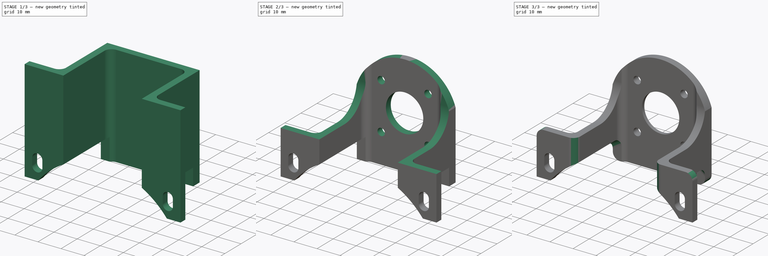
[diagram: build sequence overview — one tinted view per stage of 3, left to right]
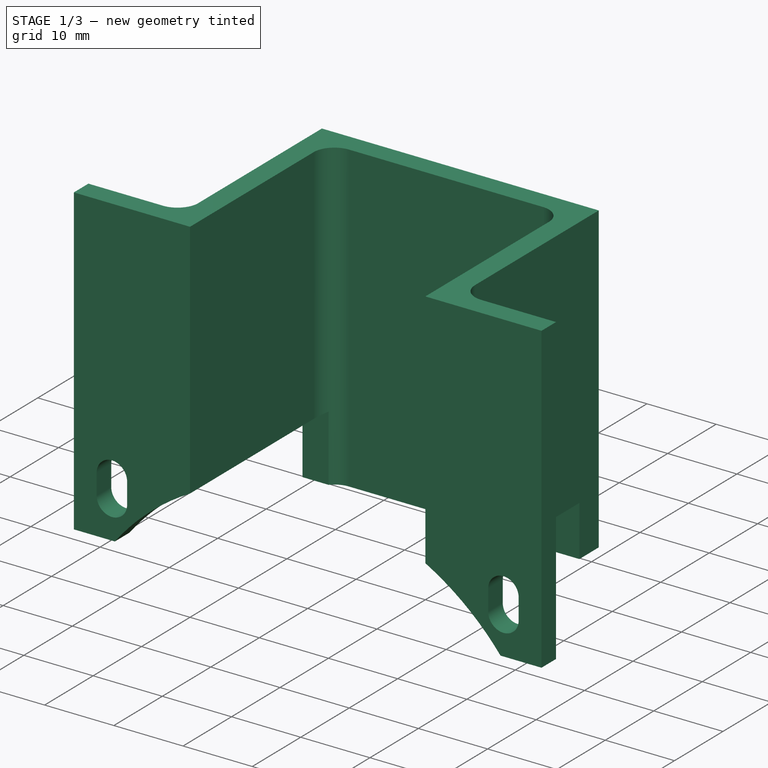
[diagram: stage 1 of 3 — iso view after this stage's code; geometry added in this stage tinted green]
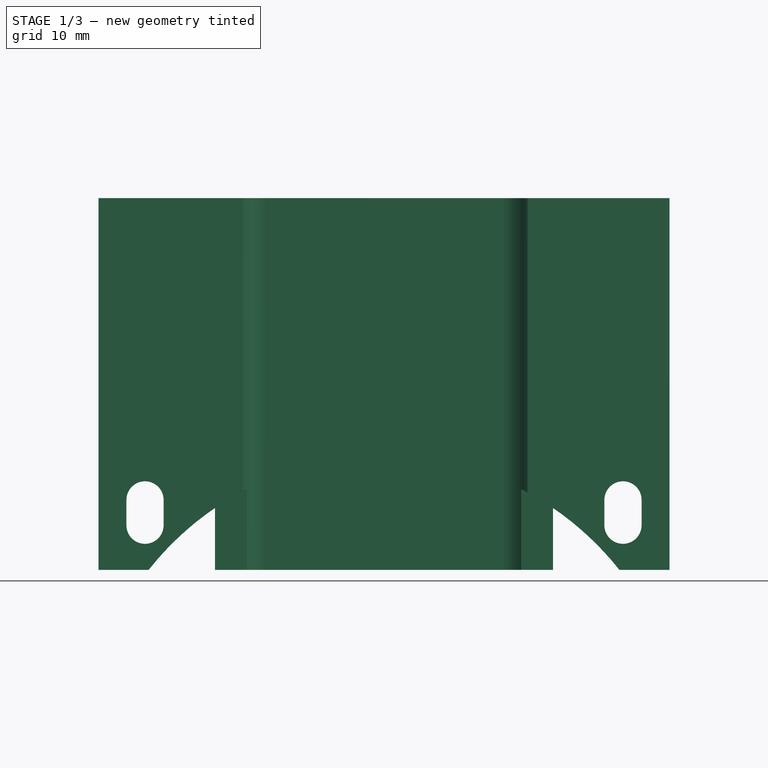
[diagram: stage 1 of 3 — front view after this stage's code; geometry added in this stage tinted green]
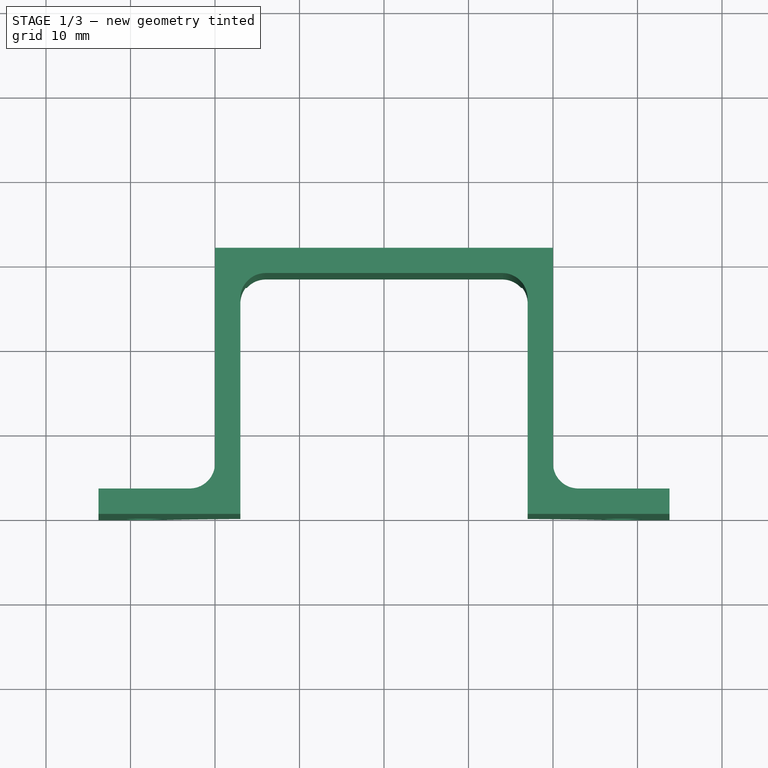
[diagram: stage 1 of 3 — top view after this stage's code; geometry added in this stage tinted green]
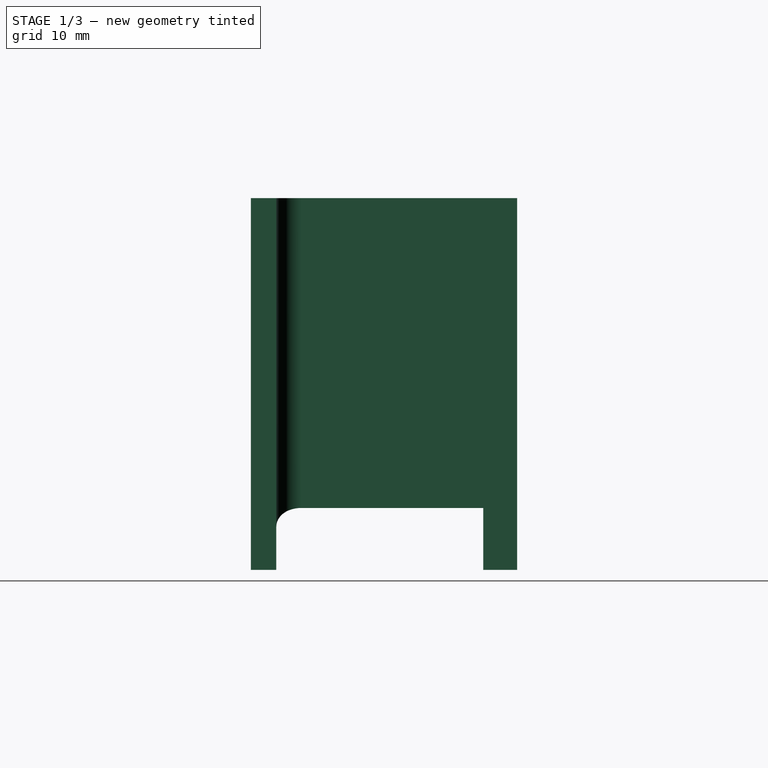
[diagram: stage 1 of 3 — right view after this stage's code; geometry added in this stage tinted green]
FCSTD DOCUMENT  (FreeCAD 0.17R5235 (Git shallow))
Label: C1043-1_encoder_mount
License: CreativeCommons Attribution-ShareAlike
LicenseURL: http://creativecommons.org/licenses/by-sa/4.0/
objects: Sketcher::SketchObject×5, PartDesign::Pocket×4, PartDesign::Pad×1, PartDesign::Chamfer×1, PartDesign::Fillet×1, PartDesign::Body×1
note: 18 computed .brp shape members not serialized (recipe doc carries the construction recipe); baked Part::Feature solids carry a one-line shape summary decoded from their .brp

FEATURE [Sketcher::SketchObject] Sketch
  MapMode = 5
  Support = -> [XY_Plane]
  sketch-geometry (19):
    g0: LineSegment StartX=-33.7843 StartY=0 StartZ=0 EndX=-17 EndY=0 EndZ=0
    g1: LineSegment StartX=-17 StartY=0 StartZ=0 EndX=-17 EndY=25.5 EndZ=0
    g2: LineSegment StartX=-14 StartY=28.5 StartZ=0 EndX=14 EndY=28.5 EndZ=0
    g3: LineSegment StartX=17 StartY=25.5 StartZ=0 EndX=17 EndY=0 EndZ=0
    g4: LineSegment StartX=17 StartY=0 StartZ=0 EndX=33.7843 EndY=0 EndZ=0
    g5: LineSegment [constr] StartX=-28.2843 StartY=0 StartZ=0 EndX=-28.2843 EndY=3 EndZ=0
    g6: LineSegment [constr] StartX=28.2843 StartY=0 StartZ=0 EndX=28.2843 EndY=3 EndZ=0
    g7: LineSegment StartX=33.7843 StartY=0 StartZ=0 EndX=33.7843 EndY=3 EndZ=0
    g8: LineSegment StartX=-33.7843 StartY=0 StartZ=0 EndX=-33.7843 EndY=3 EndZ=0
    g9: LineSegment [constr] StartX=-17 StartY=10 StartZ=0 EndX=17 EndY=10 EndZ=0
    g10: LineSegment StartX=-20 StartY=31.5 StartZ=0 EndX=20 EndY=31.5 EndZ=0
    g11: LineSegment StartX=20 StartY=31.5 StartZ=0 EndX=20 EndY=6 EndZ=0
    g12: LineSegment StartX=-20 StartY=31.5 StartZ=0 EndX=-20 EndY=6 EndZ=0
    g13: LineSegment StartX=-33.7843 StartY=3 StartZ=0 EndX=-23 EndY=3 EndZ=0
    g14: LineSegment StartX=23 StartY=3 StartZ=0 EndX=33.7843 EndY=3 EndZ=0
    g15: ArcOfCircle CenterX=14 CenterY=25.5 CenterZ=0 NormalX=0 NormalY=0 NormalZ=1 AngleXU=0 Radius=3 StartAngle=0 EndAngle=1.5708
    g16: ArcOfCircle CenterX=-14 CenterY=25.5 CenterZ=0 NormalX=0 NormalY=0 NormalZ=1 AngleXU=0 Radius=3 StartAngle=1.5708 EndAngle=3.14159
    g17: ArcOfCircle CenterX=23 CenterY=6 CenterZ=0 NormalX=0 NormalY=0 NormalZ=1 AngleXU=0 Radius=3 StartAngle=3.14159 EndAngle=4.71239
    g18: ArcOfCircle CenterX=-23 CenterY=6 CenterZ=0 NormalX=0 NormalY=0 NormalZ=1 AngleXU=0 Radius=3 StartAngle=4.71239 EndAngle=6.28319
  constraints (55):
    c: PointOnObject(g0,g-1)
    c: PointOnObject(g0,g-1)
    c: Coincident(g0,g1)
    c: Vertical(g1)
    c: Horizontal(g2)
    c: Vertical(g3)
    c: Coincident(g3,g4)
    c: Horizontal(g4)
    c: Equal(g4,g0)
    c: Symmetric(g0,g3,g-2)
    c: DistanceX(g0,g3) = 34
    c: PointOnObject(g5,g0)
    c: Vertical(g5)
    c: PointOnObject(g6,g4)
    c: Vertical(g6)
    c: Symmetric(g6,g5,g-2)
    c: DistanceX(g5,g6) = 56.5685
    c: DistanceX(g0,g5) = 5.5
    c: Coincident(g7,g4)
    c: Vertical(g7)
    c: DistanceY(g7,g7) = 3
    c: Equal(g7,g6)
    c: Equal(g6,g5)
    c: Coincident(g8,g0)
    c: Vertical(g8)
    c: Equal(g8,g5)
    c: PointOnObject(g9,g1)
    c: PointOnObject(g9,g3)
    c: Horizontal(g9)
    c: DistanceY(g0,g9) = 10
    c: Horizontal(g10)
    c: Coincident(g11,g10)
    c: Vertical(g11)
    c: Symmetric(g10,g10,g-2)
    c: Coincident(g12,g10)
    c: Vertical(g12)
    c: Coincident(g13,g8)
    c: PointOnObject(g5,g13)
    c: Coincident(g14,g7)
    c: Horizontal(g14)
    c: Tangent(g2,g15) = 1.5708
    c: Tangent(g3,g15) = 1.5708
    c: Tangent(g2,g16) = 1.5708
    c: Tangent(g1,g16) = 1.5708
    c: Tangent(g11,g17) = -1.5708
    c: Tangent(g14,g17) = -1.5708
    c: Tangent(g12,g18) = 1.5708
    c: Tangent(g13,g18) = -1.5708
    c: Equal(g18,g17)
    c: Equal(g17,g15)
    c: Equal(g15,g16)
    c: DistanceX(g3,g10) = 3
    c: DistanceY(g2,g10) = 3
    c: Radius(g17) = 3
    c: DistanceY(g9,g2) = 18.5
FEATURE [Sketcher::SketchObject] Sketch001
  MapMode = 5
  Placement = pos=(0,0,0) rot=(1,0,0;1.5708rad)
  Support = -> [XZ_Plane]
  sketch-geometry (15):
    g0: ArcOfCircle [constr] CenterX=0 CenterY=-45 CenterZ=0 NormalX=0 NormalY=0 NormalZ=1 AngleXU=0 Radius=40 StartAngle=0 EndAngle=3.14159
    g1: GeomPoint X=28.2843 Y=-16.7157 Z=0
    g2: GeomPoint X=-28.2843 Y=-16.7157 Z=0
    g3: LineSegment [constr] StartX=0 StartY=-45 StartZ=0 EndX=28.2843 EndY=-16.7157 EndZ=0
    g4: ArcOfCircle CenterX=28.2843 CenterY=-17.7157 CenterZ=0 NormalX=0 NormalY=0 NormalZ=1 AngleXU=0 Radius=2.2 StartAngle=3.14159 EndAngle=6.28319
    g5: ArcOfCircle CenterX=28.2843 CenterY=-14.7157 CenterZ=0 NormalX=0 NormalY=0 NormalZ=1 AngleXU=0 Radius=2.2 StartAngle=0 EndAngle=3.14159
    g6: LineSegment StartX=30.4843 StartY=-17.7157 StartZ=0 EndX=30.4843 EndY=-14.7157 EndZ=0
    g7: LineSegment StartX=26.0843 StartY=-17.7157 StartZ=0 EndX=26.0843 EndY=-14.7157 EndZ=0
    g8: ArcOfCircle CenterX=-28.2843 CenterY=-14.7157 CenterZ=0 NormalX=0 NormalY=0 NormalZ=1 AngleXU=0 Radius=2.2 StartAngle=0 EndAngle=3.14159
    g9: ArcOfCircle CenterX=-28.2843 CenterY=-17.7157 CenterZ=0 NormalX=0 NormalY=0 NormalZ=1 AngleXU=0 Radius=2.2 StartAngle=3.14159 EndAngle=6.28319
    g10: LineSegment StartX=-30.4843 StartY=-14.7157 StartZ=0 EndX=-30.4843 EndY=-17.7157 EndZ=0
    g11: LineSegment StartX=-26.0843 StartY=-14.7157 StartZ=0 EndX=-26.0843 EndY=-17.7157 EndZ=0
    g12: LineSegment StartX=-35.5 StartY=-45 StartZ=0 EndX=35.5 EndY=-45 EndZ=0
    g13: ArcOfCircle CenterX=0 CenterY=-45 CenterZ=0 NormalX=0 NormalY=0 NormalZ=1 AngleXU=0 Radius=35.5 StartAngle=1.5708 EndAngle=3.14159
    g14: ArcOfCircle CenterX=0 CenterY=-45 CenterZ=0 NormalX=0 NormalY=0 NormalZ=1 AngleXU=0 Radius=35.5 StartAngle=0 EndAngle=1.5708
  constraints (41):
    c: PointOnObject(g0,g-2)
    c: Radius(g0) = 40
    c: DistanceY(g0,g-1) = 45
    c: Angle(g0) = 3.14159
    c: Horizontal(g0,g0)
    c: Horizontal(g12,g12)
    c: PointOnObject(g1,g0)
    c: PointOnObject(g2,g0)
    c: Symmetric(g1,g2,g-2)
    c: Coincident(g3,g0)
    c: Coincident(g3,g1)
    c: Angle(g3,g-2) = 0.785398
    c: Tangent(g4,g7) = 1.5708
    c: Tangent(g4,g6) = -1.5708
    c: Tangent(g6,g5) = -1.5708
    c: Tangent(g7,g5) = 1.5708
    c: Vertical(g6)
    c: Equal(g4,g5)
    c: Vertical(g5,g1)
    c: DistanceY(g4,g1) = 1
    c: DistanceY(g1,g5) = 2
    c: Radius(g5) = 2.2
    c: Tangent(g8,g11) = 1.5708
    c: Tangent(g8,g10) = -1.5708
    c: Tangent(g10,g9) = -1.5708
    c: Tangent(g11,g9) = 1.5708
    c: Vertical(g10)
    c: Equal(g8,g9)
    c: Vertical(g9,g2)
    c: Equal(g8,g5)
    c: Horizontal(g8,g5)
    c: Horizontal(g9,g4)
    c: Coincident(g13,g0)
    c: Coincident(g14,g0)
    c: Coincident(g12,g13)
    c: Coincident(g14,g12)
    c: PointOnObject(g0,g12)
    c: Equal(g13,g14)
    c: Radius(g14) = 35.5
    c: PointOnObject(g13,g-2)
    c: PointOnObject(g14,g-2)
FEATURE [PartDesign::Pad] Pad
  Length = 21
  Length2 = 23
  Profile = -> Sketch
  Type = 4
FEATURE [Sketcher::SketchObject] Sketch002
  MapMode = 5
  Placement = pos=(0,0,0) rot=(1,0,0;1.5708rad)
  Support = -> [XZ_Plane]
  sketch-geometry (8):
    g0: ArcOfCircle CenterX=0 CenterY=0 CenterZ=0 NormalX=0 NormalY=0 NormalZ=1 AngleXU=0 Radius=21 StartAngle=0 EndAngle=3.14159
    g1: LineSegment StartX=21 StartY=0 StartZ=0 EndX=21 EndY=-4 EndZ=0
    g2: LineSegment StartX=21 StartY=-4 StartZ=0 EndX=38 EndY=-4 EndZ=0
    g3: LineSegment StartX=38 StartY=-4 StartZ=0 EndX=38 EndY=34 EndZ=0
    g4: LineSegment StartX=38 StartY=34 StartZ=0 EndX=-38 EndY=34 EndZ=0
    g5: LineSegment StartX=-38 StartY=34 StartZ=0 EndX=-38 EndY=-4 EndZ=0
    g6: LineSegment StartX=-38 StartY=-4 StartZ=0 EndX=-21 EndY=-4 EndZ=0
    g7: LineSegment StartX=-21 StartY=-4 StartZ=0 EndX=-21 EndY=0 EndZ=0
  constraints (24):
    c: PointOnObject(g0,g-1)
    c: PointOnObject(g0,g-1)
    c: Radius(g0) = 21
    c: Coincident(g0,g-1)
    c: Coincident(g1,g0)
    c: Vertical(g1)
    c: Coincident(g1,g2)
    c: Horizontal(g2)
    c: Coincident(g2,g3)
    c: Vertical(g3)
    c: Coincident(g3,g4)
    c: Horizontal(g4)
    c: Coincident(g4,g5)
    c: Vertical(g5)
    c: Coincident(g5,g6)
    c: Horizontal(g6)
    c: Coincident(g6,g7)
    c: Coincident(g7,g0)
    c: Vertical(g7)
    c: Equal(g1,g7)
    c: Equal(g2,g6)
    c: DistanceX(g4,g4) = 76
    c: DistanceY(g3,g3) = 38
    c: DistanceY(g2,g-1) = 4
FEATURE [PartDesign::Pocket] Pocket
  BaseFeature = -> Pad
  Length = 27.5
  Length2 = 100
  Profile = -> Sketch001
  Type = 0
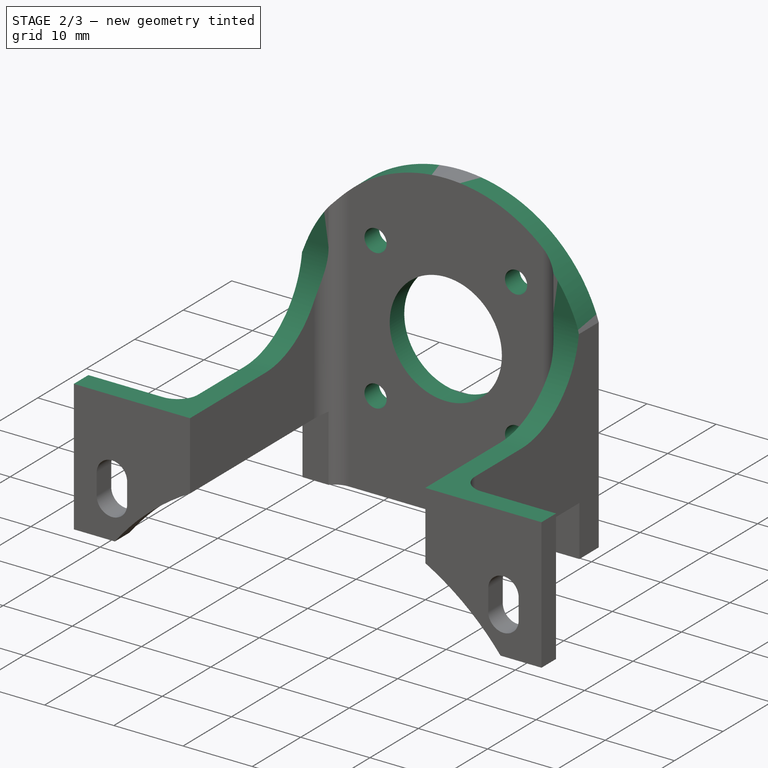
[diagram: stage 2 of 3 — iso view after this stage's code; geometry added in this stage tinted green]
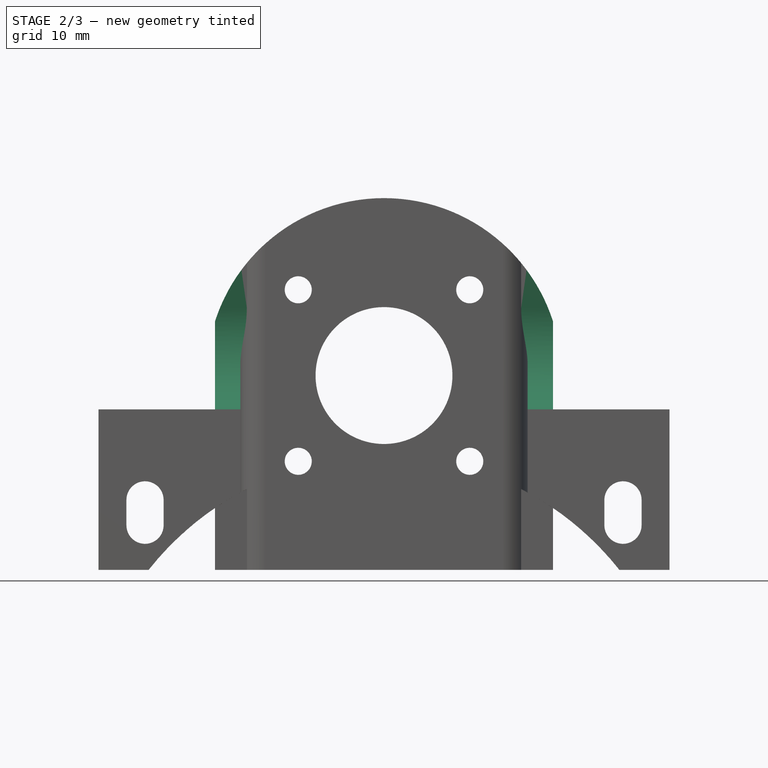
[diagram: stage 2 of 3 — front view after this stage's code; geometry added in this stage tinted green]
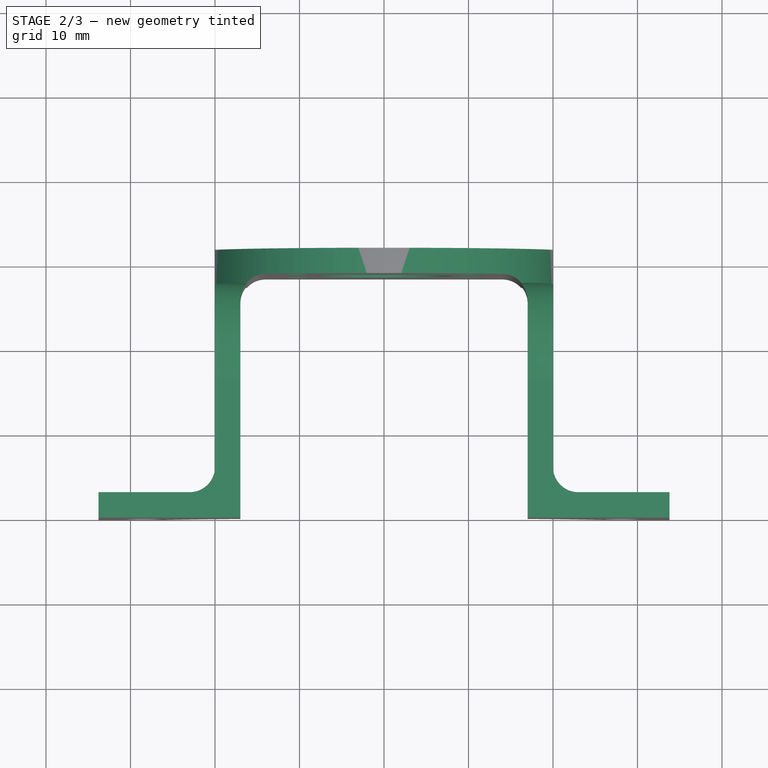
[diagram: stage 2 of 3 — top view after this stage's code; geometry added in this stage tinted green]
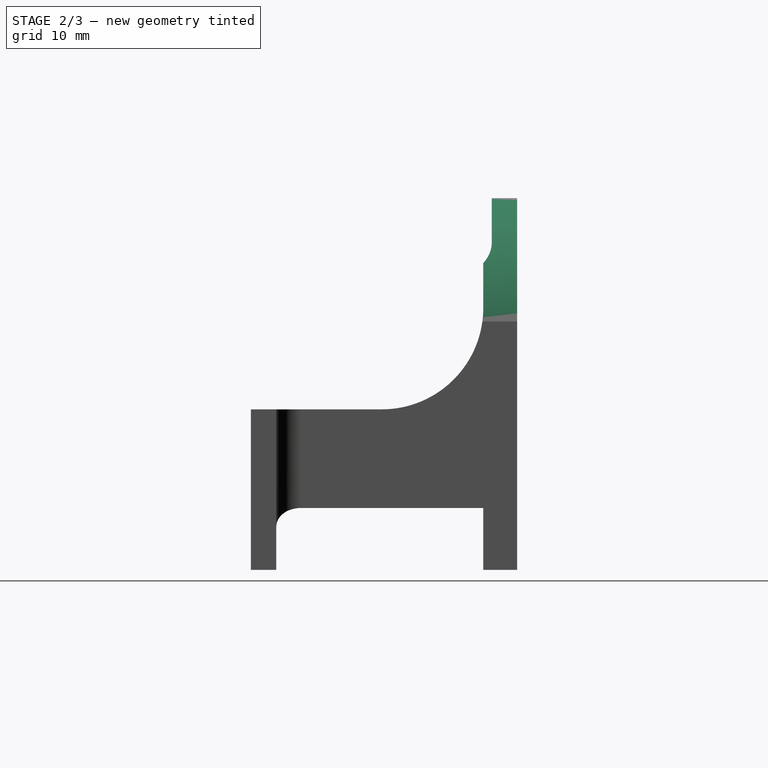
[diagram: stage 2 of 3 — right view after this stage's code; geometry added in this stage tinted green]
FEATURE [PartDesign::Pocket] Pocket001
  BaseFeature = -> Pocket
  Length = 5
  Length2 = 100
  Profile = -> Sketch002
  Type = 1
FEATURE [Sketcher::SketchObject] Sketch004
  MapMode = 5
  Placement = pos=(0,0,0) rot=(1,0,0;1.5708rad)
  Support = -> [XZ_Plane]
  sketch-geometry (5):
    g0: Circle CenterX=-10.15 CenterY=10.15 CenterZ=0 NormalX=0 NormalY=0 NormalZ=1 AngleXU=0 Radius=1.6
    g1: Circle CenterX=10.15 CenterY=10.15 CenterZ=0 NormalX=0 NormalY=0 NormalZ=1 AngleXU=0 Radius=1.6
    g2: Circle CenterX=10.15 CenterY=-10.15 CenterZ=0 NormalX=0 NormalY=0 NormalZ=1 AngleXU=0 Radius=1.6
    g3: Circle CenterX=-10.15 CenterY=-10.15 CenterZ=0 NormalX=0 NormalY=0 NormalZ=1 AngleXU=0 Radius=1.6
    g4: Circle CenterX=0 CenterY=0 CenterZ=0 NormalX=0 NormalY=0 NormalZ=1 AngleXU=0 Radius=8.1
  constraints (11):
    c: Symmetric(g0,g1,g-2)
    c: DistanceX(g0,g1) = 20.3
    c: Symmetric(g1,g2,g-1)
    c: DistanceY(g2,g1) = 20.3
    c: Equal(g1,g0)
    c: Equal(g0,g3)
    c: Equal(g3,g2)
    c: Symmetric(g2,g3,g-2)
    c: Radius(g1) = 1.6
    c: Coincident(g4,g-1)
    c: Radius(g4) = 8.1
FEATURE [Sketcher::SketchObject] Sketch005
  ExternalGeometry = -> [Pocket001]
  MapMode = 5
  Placement = pos=(0,0,0) rot=(0.57735,0.57735,0.57735;2.0944rad)
  Support = -> [YZ_Plane]
  sketch-geometry (5):
    g0: LineSegment StartX=0 StartY=-4 StartZ=0 EndX=15.5 EndY=-4 EndZ=0
    g1: LineSegment StartX=27.5 StartY=8 StartZ=0 EndX=27.5 EndY=26 EndZ=0
    g2: LineSegment StartX=27.5 StartY=26 StartZ=0 EndX=0 EndY=26 EndZ=0
    g3: LineSegment StartX=0 StartY=26 StartZ=0 EndX=0 EndY=-4 EndZ=0
    g4: ArcOfCircle CenterX=15.5 CenterY=8 CenterZ=0 NormalX=0 NormalY=0 NormalZ=1 AngleXU=0 Radius=12 StartAngle=4.71239 EndAngle=6.28319
  constraints (14):
    c: Coincident(g2,g3)
    c: Coincident(g3,g0)
    c: Horizontal(g0)
    c: Horizontal(g2)
    c: Vertical(g1)
    c: Vertical(g3)
    c: Tangent(g0,g4) = -1.5708
    c: Tangent(g1,g4) = -1.5708
    c: Radius(g4) = 12
    c: DistanceY(g3,g3) = 30
    c: Coincident(g2,g1)
    c: DistanceX(g2,g2) = 27.5
    c: DistanceY(g0,g-1) = 4
    c: PointOnObject(g0,g-2)
FEATURE [PartDesign::Pocket] Pocket002
  BaseFeature = -> Pocket001
  Length = 5
  Length2 = 100
  Midplane = true
  Profile = -> Sketch005
  Type = 1
FEATURE [PartDesign::Pocket] Pocket003
  BaseFeature = -> Pocket002
  Length = 5
  Length2 = 100
  Profile = -> Sketch004
  Type = 1
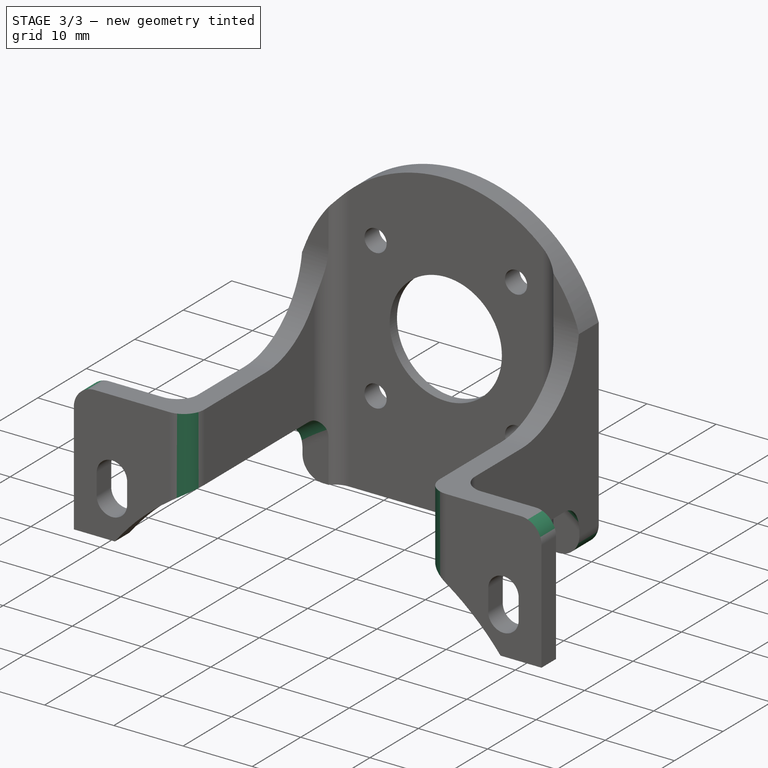
[diagram: stage 3 of 3 — iso view after this stage's code; geometry added in this stage tinted green]
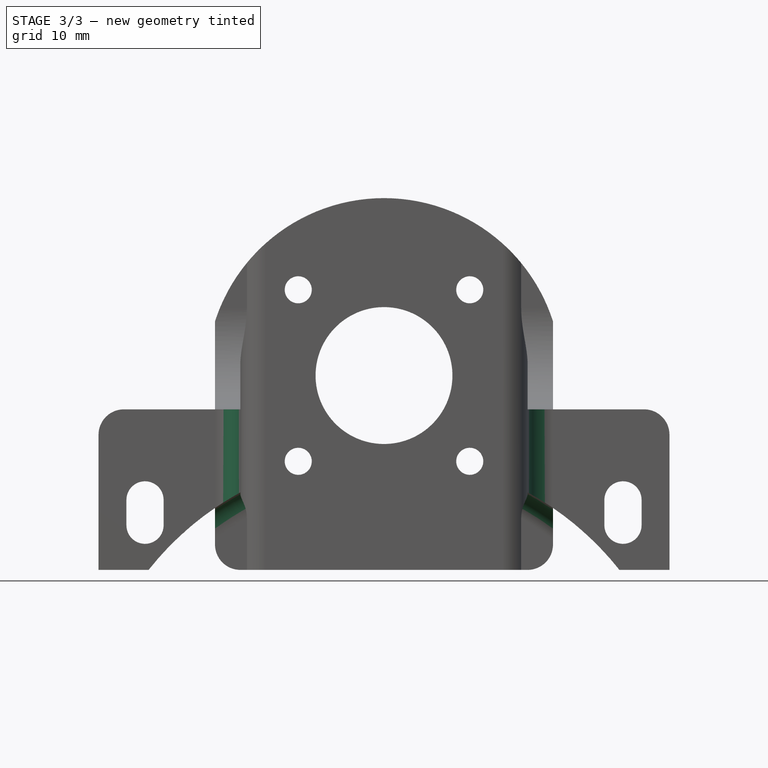
[diagram: stage 3 of 3 — front view after this stage's code; geometry added in this stage tinted green]
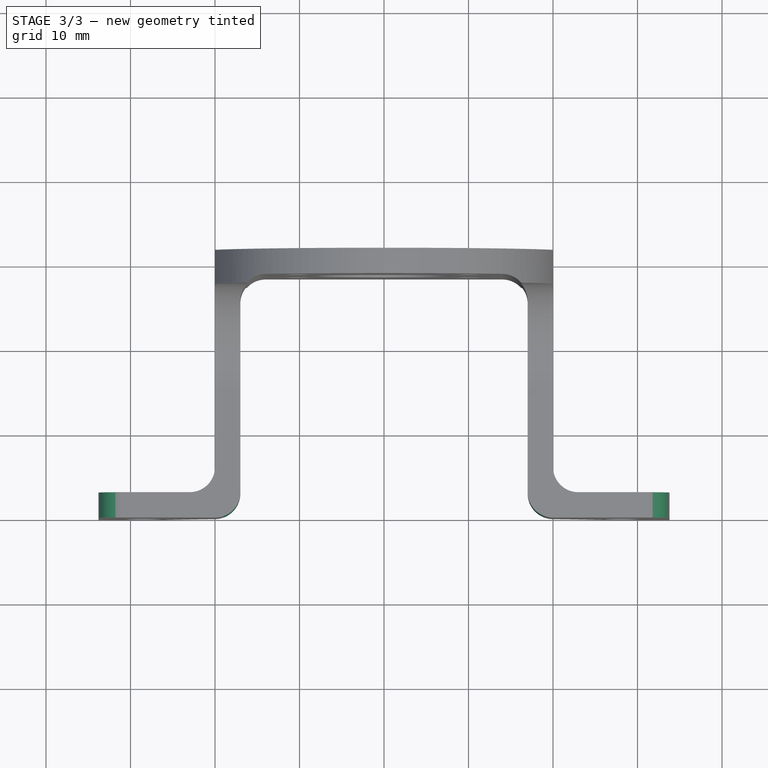
[diagram: stage 3 of 3 — top view after this stage's code; geometry added in this stage tinted green]
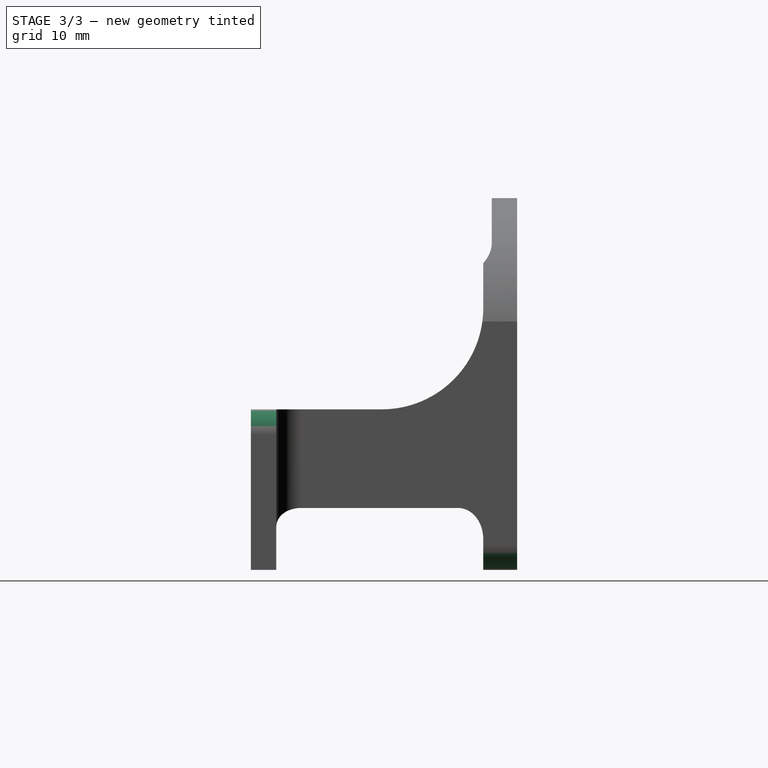
[diagram: stage 3 of 3 — right view after this stage's code; geometry added in this stage tinted green]
FEATURE [PartDesign::Chamfer] Chamfer
  Base = -> Pocket003 [Edge68]
  BaseFeature = -> Pocket003
  Size = 1.5
FEATURE [PartDesign::Fillet] Fillet
  Base = -> Chamfer [Edge126,Edge110,Edge14,Edge15,Edge94,Edge93,Edge51,Edge54]
  BaseFeature = -> Chamfer
  Radius = 3
FEATURE [PartDesign::Body] Body
  Group = -> [Sketch,Sketch001,Pad,Sketch002,Pocket,Pocket001,Sketch004,Sketch005,Pocket002,Pocket003,Chamfer,Fillet]
  Origin = -> Origin
  Tip = -> Fillet
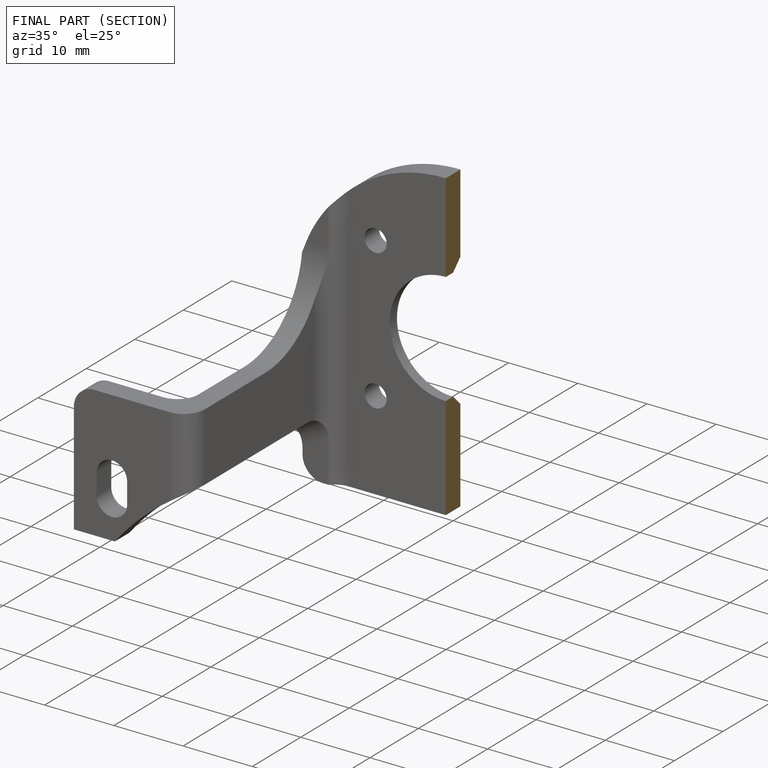
[diagram: finished part — half-section view (interior)]
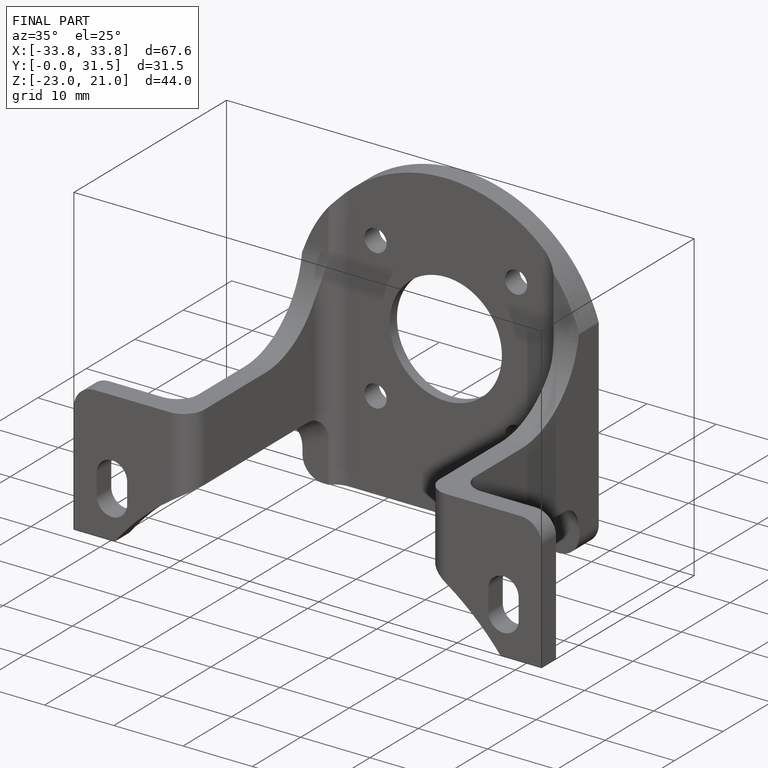
[diagram: finished part — iso view with bounding-box wireframe]
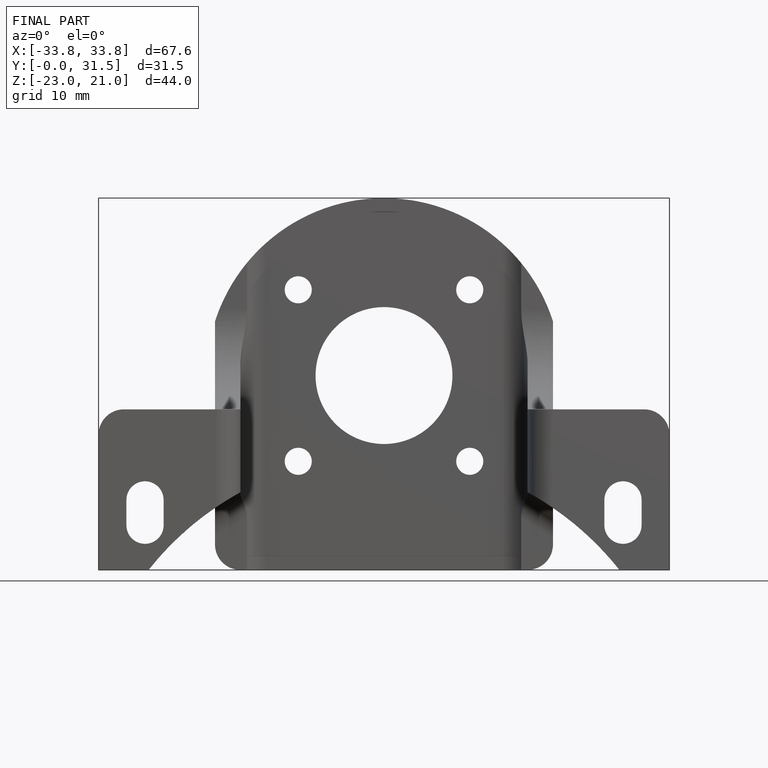
[diagram: finished part — front view with bounding-box wireframe]
